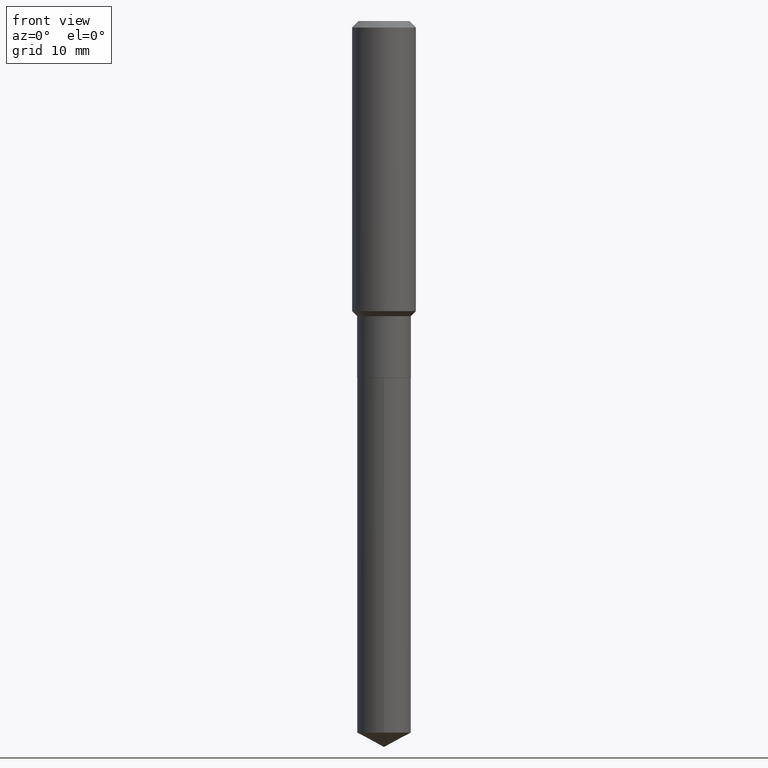
[diagram: clean part render]
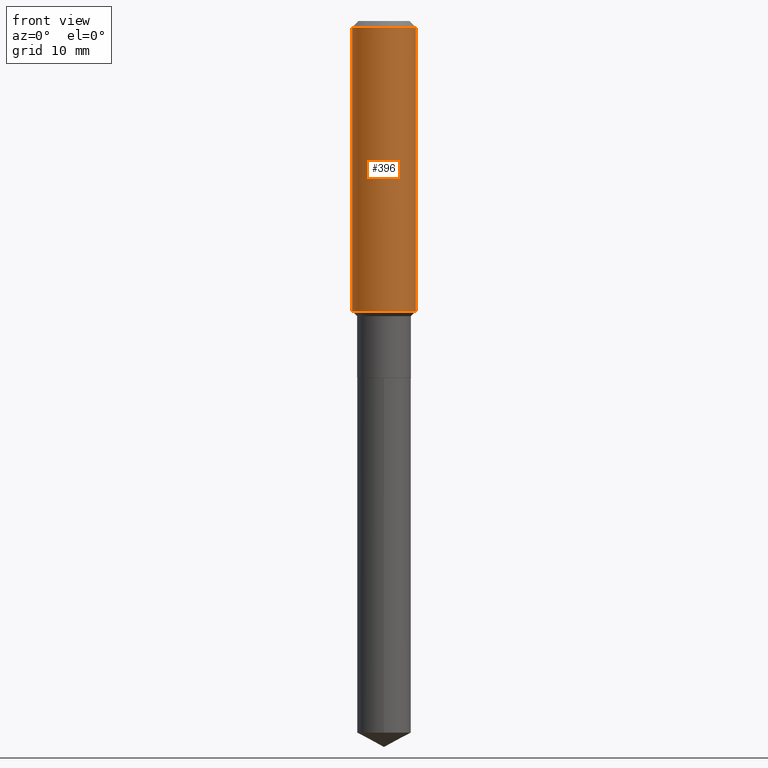
[diagram: same view with one face highlighted and labeled with its STEP entity id]
A machine part, front view. The second image highlights one B-rep face of the part: STEP entity #396.
In plain terms, the highlighted cylindrical surface (edge-blend (fillet) strip) has radius 4.0005 mm, axis along (-0, 0, 1).
Its self-contained STEP definition (entity closure, byte-faithful):
#9 = EDGE_CURVE ( 'NONE', #123, #133, #199, .T. ) ;
#22 = AXIS2_PLACEMENT_3D ( 'NONE', #371, #189, #342 ) ;
#31 = VERTEX_POINT ( 'NONE', #345 ) ;
#39 = VECTOR ( 'NONE', #490, 39.37007874015748143 ) ;
#72 = DIRECTION ( 'NONE',  ( -2.445468806185136597E-29, 3.491481338843145583E-15, 1.000000000000000000 ) ) ;
#115 = CARTESIAN_POINT ( 'NONE',  ( 0.000000000000000000, 0.000000000000000000, 0.000000000000000000 ) ) ;
#117 = DIRECTION ( 'NONE',  ( -2.445468806185136877E-29, 3.491481338843145188E-15, 1.000000000000000000 ) ) ;
#123 = VERTEX_POINT ( 'NONE', #245 ) ;
#133 = VERTEX_POINT ( 'NONE', #209 ) ;
#143 = VECTOR ( 'NONE', #117, 39.37007874015748143 ) ;
#151 = ORIENTED_EDGE ( 'NONE', *, *, #360, .F. ) ;
#165 = AXIS2_PLACEMENT_3D ( 'NONE', #115, #195, #202 ) ;
#184 = LINE ( 'NONE', #304, #39 ) ;
#189 = DIRECTION ( 'NONE',  ( -2.445468806185136597E-29, 3.491481338843145583E-15, 1.000000000000000000 ) ) ;
#195 = DIRECTION ( 'NONE',  ( -2.445468806185136597E-29, 3.491481338843145583E-15, 1.000000000000000000 ) ) ;
#199 = LINE ( 'NONE', #354, #143 ) ;
#202 = DIRECTION ( 'NONE',  ( 1.000000000000000000, -6.982962677686267499E-15, 4.876176775795936353E-29 ) ) ;
#209 = CARTESIAN_POINT ( 'NONE',  ( -0.1575000000000000011, -1.434913790541602697E-15, -0.03150000000000019451 ) ) ;
#225 = ORIENTED_EDGE ( 'NONE', *, *, #9, .F. ) ;
#227 = FACE_OUTER_BOUND ( 'NONE', #290, .T. ) ;
#231 = VERTEX_POINT ( 'NONE', #334 ) ;
#240 = CYLINDRICAL_SURFACE ( 'NONE', #165, 0.1575000000000000844 ) ;
#245 = CARTESIAN_POINT ( 'NONE',  ( -0.1575000000000001676, -3.878950727731804329E-15, -1.431499999999999995 ) ) ;
#290 = EDGE_LOOP ( 'NONE', ( #225, #367, #412, #151 ) ) ;
#304 = CARTESIAN_POINT ( 'NONE',  ( 0.1575000000000000844, -1.099816621735587677E-15, 7.679978421878603638E-30 ) ) ;
#306 = CIRCLE ( 'NONE', #388, 0.1575000000000000011 ) ;
#307 = DIRECTION ( 'NONE',  ( 1.000000000000000000, -6.982962677686265922E-15, 0.000000000000000000 ) ) ;
#334 = CARTESIAN_POINT ( 'NONE',  ( 0.1575000000000001676, -6.097872158289550991E-15, -1.431499999999999995 ) ) ;
#340 = EDGE_CURVE ( 'NONE', #123, #231, #373, .T. ) ;
#342 = DIRECTION ( 'NONE',  ( 1.000000000000000000, -6.982962677686267499E-15, 0.000000000000000000 ) ) ;
#345 = CARTESIAN_POINT ( 'NONE',  ( 0.1575000000000000011, -1.209798283909146741E-15, -0.03150000000000019451 ) ) ;
#351 = EDGE_CURVE ( 'NONE', #231, #31, #184, .T. ) ;
#354 = CARTESIAN_POINT ( 'NONE',  ( -0.1575000000000000844, 1.119104808822158392E-15, -7.747322767151481189E-30 ) ) ;
#360 = EDGE_CURVE ( 'NONE', #133, #31, #306, .T. ) ;
#367 = ORIENTED_EDGE ( 'NONE', *, *, #340, .T. ) ;
#371 = CARTESIAN_POINT ( 'NONE',  ( 3.500688596054023043E-29, -4.998055536553962721E-15, -1.431499999999999995 ) ) ;
#373 = CIRCLE ( 'NONE', #22, 0.1575000000000001676 ) ;
#388 = AXIS2_PLACEMENT_3D ( 'NONE', #455, #72, #307 ) ;
#396 = ADVANCED_FACE ( 'NONE', ( #227 ), #240, .T. ) ;
#412 = ORIENTED_EDGE ( 'NONE', *, *, #351, .T. ) ;
#455 = CARTESIAN_POINT ( 'NONE',  ( 7.703226739483228723E-31, -1.099816621735597661E-16, -0.03150000000000019451 ) ) ;
#490 = DIRECTION ( 'NONE',  ( -2.445468806185136877E-29, 3.491481338843145188E-15, 1.000000000000000000 ) ) ;